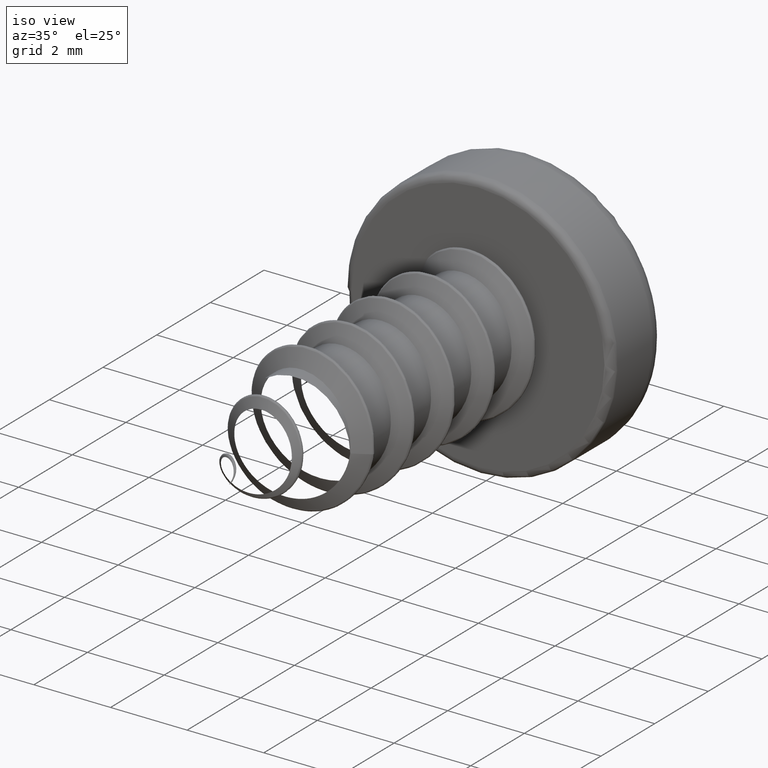
[diagram: clean part render]
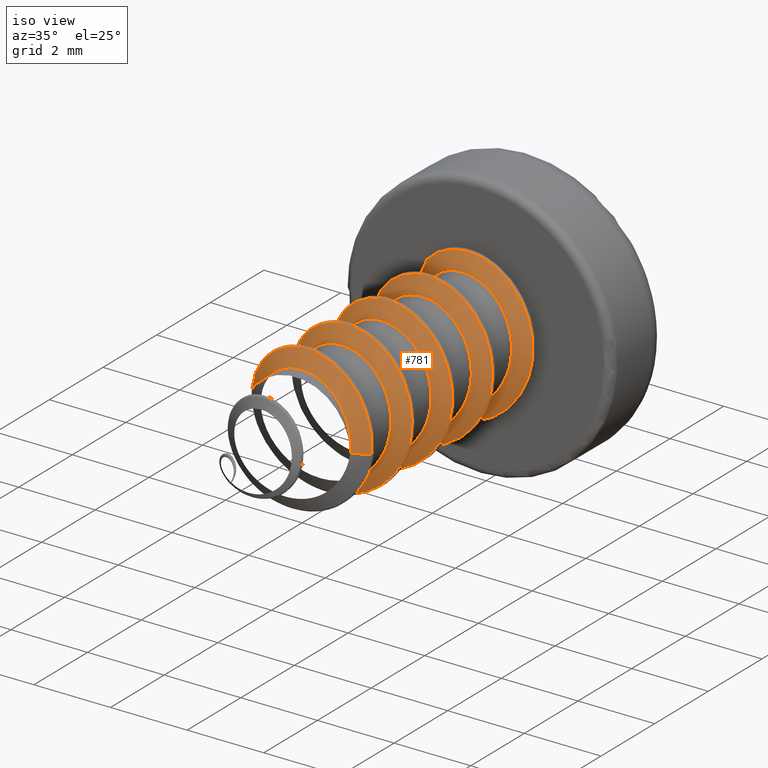
[diagram: same view with one face highlighted and labeled with its STEP entity id]
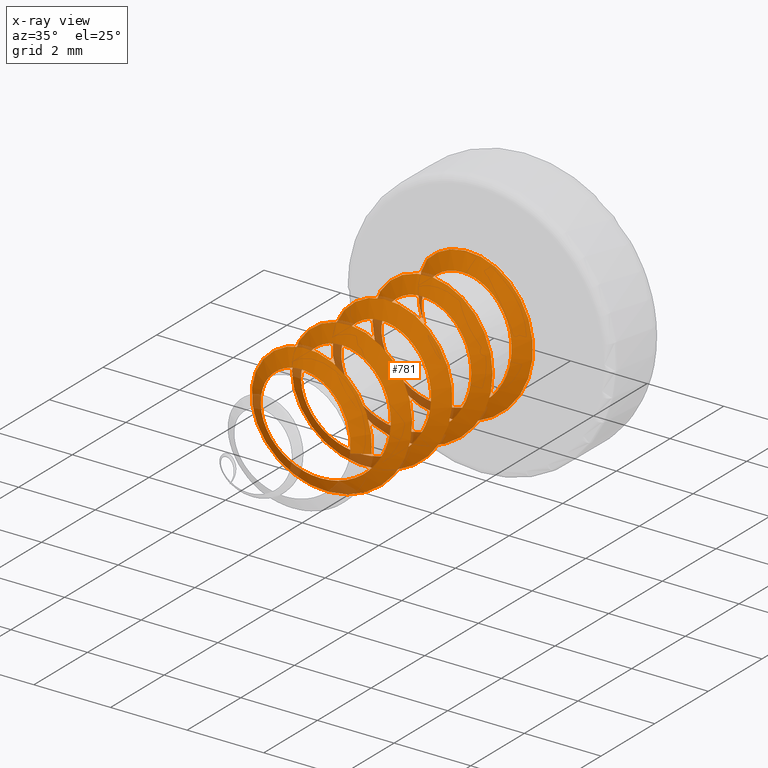
[diagram: x-ray of the same camera — body ghosted, the highlighted face saturated]
A machine part, iso view. The second image highlights one B-rep face of the part: STEP entity #781.
The next image is the same camera in x-ray: the body ghosted, the highlighted face saturated — about 8% of this face is hidden behind the body in this view.
In plain terms, the highlighted face is a freeform B-spline surface patch.
Its self-contained STEP definition (entity closure, byte-faithful):
#3 = CARTESIAN_POINT ( 'NONE',  ( -0.09987665471453638366, 1.008339647664638905, -1.437113781121196920 ) ) ;
#12 = CARTESIAN_POINT ( 'NONE',  ( 1.007627163190830233, -1.412500000000000311, 1.007627163190830233 ) ) ;
#27 = CARTESIAN_POINT ( 'NONE',  ( 0.7559397513308986349, -1.650309892324152150, -1.824999999999998623 ) ) ;
#28 = CARTESIAN_POINT ( 'NONE',  ( 0.3459861439554179352, 1.717507204482072503, 1.386393949257844538 ) ) ;
#29 = CARTESIAN_POINT ( 'NONE',  ( -1.825000000000001066, -0.5253098923241510398, -0.7559397513308984129 ) ) ;
#48 = CARTESIAN_POINT ( 'NONE',  ( -1.290469875665448685, 2.568440107675848072, -1.290469875665448463 ) ) ;
#49 = CARTESIAN_POINT ( 'NONE',  ( 1.174309526311028140, 3.045790213789427270, 0.8140625197956702364 ) ) ;
#59 = CARTESIAN_POINT ( 'NONE',  ( -0.6923341550841431991, -2.603523856270646419, 1.250005122212090480 ) ) ;
#63 = CARTESIAN_POINT ( 'NONE',  ( -0.7559397513308980798, -0.9003098923241520390, 1.824999999999998845 ) ) ;
#66 = CARTESIAN_POINT ( 'NONE',  ( 1.325400946962467019, 2.991363288109147422, 0.5339721996070398990 ) ) ;
#84 = CARTESIAN_POINT ( 'NONE',  ( -1.290469875665448685, -0.4315598923241519835, -1.290469875665448463 ) ) ;
#103 = CARTESIAN_POINT ( 'NONE',  ( -1.824999999999998845, -2.119059892324151484, 2.234980408443918722E-16 ) ) ;
#116 = CARTESIAN_POINT ( 'NONE',  ( 1.422419339735376154, -1.578174985472982739, 0.1363423541629372182 ) ) ;
#123 = CARTESIAN_POINT ( 'NONE',  ( -1.309063904724181437, 3.696701271350068652, 1.271875846606715266 ) ) ;
#138 = CARTESIAN_POINT ( 'NONE',  ( 1.290469875665449795, 0.3184401076758492932, 1.290469875665449795 ) ) ;
#150 = CARTESIAN_POINT ( 'NONE',  ( 0.7966179178529966265, -1.366304757443552065, 1.200373468168141500 ) ) ;
#175 = CARTESIAN_POINT ( 'NONE',  ( -1.344567546616423082, -2.267905563840935113, -0.4835541455109310660 ) ) ;
#180 = EDGE_CURVE ( 'NONE', #2212, #4928, #4597, .T. ) ;
#199 = CARTESIAN_POINT ( 'NONE',  ( -0.01145021896267220916, -1.222926698314638516, 1.428870911705670377 ) ) ;
#222 = CARTESIAN_POINT ( 'NONE',  ( 1.270392826307617851, -0.2140749331128754818, -0.6541806550332229797 ) ) ;
#228 = CARTESIAN_POINT ( 'NONE',  ( -0.7559397513308986349, 2.099690107675848960, 1.825000000000000844 ) ) ;
#239 = CARTESIAN_POINT ( 'NONE',  ( 1.315034235997164735, -0.1960186298450618536, -0.5589884137323660740 ) ) ;
#249 = CARTESIAN_POINT ( 'NONE',  ( -1.825000000000000622, 2.380940107675849404, 2.234980408443920694E-16 ) ) ;
#263 = CARTESIAN_POINT ( 'NONE',  ( -0.02562295694757490971, -0.4788250891305084744, -1.428717935387212590 ) ) ;
#291 = CARTESIAN_POINT ( 'NONE',  ( 1.117490204221960347E-16, 0.5059401076758489602, 1.825000000000000622 ) ) ;
#311 = B_SPLINE_CURVE_WITH_KNOTS ( 'NONE', 1,
 ( #4219, #5355 ),
 .UNSPECIFIED., .F., .F.,
 ( 2, 2 ),
 ( 0.000000000000000000, 1.000000000000000000 ),
 .UNSPECIFIED. ) ;
#411 = CARTESIAN_POINT ( 'NONE',  ( 1.007627163190830233, 1.587499999999999467, 1.007627163190830233 ) ) ;
#426 = CARTESIAN_POINT ( 'NONE',  ( 1.290469875665448463, -2.681559892324151484, 1.290469875665448463 ) ) ;
#427 = CARTESIAN_POINT ( 'NONE',  ( 0.7404430175993651497, 1.644932090007611869, 1.235555343368547554 ) ) ;
#433 = CARTESIAN_POINT ( 'NONE',  ( -1.007627163190830011, 1.962499999999999911, 1.007627163190830233 ) ) ;
#447 = CARTESIAN_POINT ( 'NONE',  ( -0.9472921333812492906, 2.353790902308045219, -1.085203848282680683 ) ) ;
#453 = CARTESIAN_POINT ( 'NONE',  ( -1.425000000000000044, 2.056249999999999911, 0.5902543263816606434 ) ) ;
#457 = CARTESIAN_POINT ( 'NONE',  ( 0.8888489549387126321, 1.186320475606509772, -1.118799972695244449 ) ) ;
#465 = CARTESIAN_POINT ( 'NONE',  ( 0.1376796028442892061, 1.752952464097291108, 1.422265418727651332 ) ) ;
#466 = CARTESIAN_POINT ( 'NONE',  ( 1.117490204221960347E-16, -2.494059892324151040, 1.825000000000000622 ) ) ;
#474 = CARTESIAN_POINT ( 'NONE',  ( 8.725608443924891385E-17, 3.275000000000000355, 1.425000000000000044 ) ) ;
#487 = CARTESIAN_POINT ( 'NONE',  ( -0.7559397513308997452, -1.837809892324150818, -1.825000000000000622 ) ) ;
#494 = CARTESIAN_POINT ( 'NONE',  ( 0.5902543263816606434, 0.1812499999999995504, 1.425000000000000044 ) ) ;
#498 = CARTESIAN_POINT ( 'NONE',  ( 0.1266801997864488716, -2.744452804200441243, 1.435150432561871581 ) ) ;
#506 = CARTESIAN_POINT ( 'NONE',  ( -3.352470612665877343E-16, 1.255940107675848072, -1.824999999999998845 ) ) ;
#507 = CARTESIAN_POINT ( 'NONE',  ( -1.428014480616729420, 2.141866009883426347, 0.04996333838694801827 ) ) ;
#520 = CARTESIAN_POINT ( 'NONE',  ( 1.824999999999998845, 3.130940107675848516, 0.000000000000000000 ) ) ;
#541 = CARTESIAN_POINT ( 'NONE',  ( 1.824999999999998845, 1.630940107675848516, 0.000000000000000000 ) ) ;
#563 = CARTESIAN_POINT ( 'NONE',  ( 1.290469875665448463, 3.318440107675848516, 1.290469875665448463 ) ) ;
#565 = CARTESIAN_POINT ( 'NONE',  ( 1.041978850163929993, 3.080493471072495382, 0.9777426683601172508 ) ) ;
#587 = CARTESIAN_POINT ( 'NONE',  ( -1.290469875665448685, 1.068440107675848294, -1.290469875665448463 ) ) ;
#588 = CARTESIAN_POINT ( 'NONE',  ( -0.1055934554151159444, 3.291775355385210933, 1.425060249694208414 ) ) ;
#600 = CARTESIAN_POINT ( 'NONE',  ( -1.216226022611091473, -2.213681026777018612, -0.7717935333644971863 ) ) ;
#609 = CARTESIAN_POINT ( 'NONE',  ( 1.435059086184683474, 2.919424448711136488, 0.1264638354089272221 ) ) ;
#637 = EDGE_CURVE ( 'NONE', #5445, #2212, #2455, .T. ) ;
#645 = CARTESIAN_POINT ( 'NONE',  ( -1.437160046621686282, -0.8335888320132174290, -0.09828861475873809650 ) ) ;
#646 = ORIENTED_EDGE ( 'NONE', *, *, #1663, .F. ) ;
#664 = CARTESIAN_POINT ( 'NONE',  ( 1.224778679930412784, -1.469923742781206411, 0.7360317319688218785 ) ) ;
#679 = CARTESIAN_POINT ( 'NONE',  ( 1.425000000000000044, -3.100000000000000533, 0.000000000000000000 ) ) ;
#688 = CARTESIAN_POINT ( 'NONE',  ( 1.276432496422353013, -1.488228126667585638, 0.6421821976474565430 ) ) ;
#716 = CARTESIAN_POINT ( 'NONE',  ( 1.083263062836580914, 0.07050440052589070083, 0.9319515000232673207 ) ) ;
#724 = CARTESIAN_POINT ( 'NONE',  ( 1.425000000000000044, -3.100000000000000533, 0.000000000000000000 ) ) ;
#726 = CARTESIAN_POINT ( 'NONE',  ( 1.117490204221960347E-16, 2.005940107675848960, 1.825000000000000622 ) ) ;
#739 = CARTESIAN_POINT ( 'NONE',  ( -1.137600250853696426, 0.4937586672838104040, 0.8646577670982275032 ) ) ;
#759 = CARTESIAN_POINT ( 'NONE',  ( 0.6864264475115349207, -0.3546760162037571606, -1.253255485451035822 ) ) ;
#781 = ADVANCED_FACE ( 'NONE', ( #4655 ), #4323, .T. ) ;
#785 = CARTESIAN_POINT ( 'NONE',  ( 1.825000000000000622, 1.537190107675849626, -0.7559397513308999672 ) ) ;
#798 = CARTESIAN_POINT ( 'NONE',  ( 0.7559397513308988570, 3.412190107675849404, 1.825000000000000844 ) ) ;
#877 = CARTESIAN_POINT ( 'NONE',  ( -0.5902543263816604213, 0.3687499999999997446, 1.425000000000000044 ) ) ;
#895 = CARTESIAN_POINT ( 'NONE',  ( 1.424999999999999822, -1.693750000000000311, -0.5902543263816615315 ) ) ;
#906 = CARTESIAN_POINT ( 'NONE',  ( 0.7559397513308981909, -2.587809892324151928, 1.824999999999998845 ) ) ;
#914 = CARTESIAN_POINT ( 'NONE',  ( -2.617682533177467046E-16, -0.4750000000000001443, -1.425000000000000044 ) ) ;
#928 = CARTESIAN_POINT ( 'NONE',  ( -0.7730624465119054767, 2.388429375200506577, -1.215464345978062077 ) ) ;
#934 = CARTESIAN_POINT ( 'NONE',  ( 1.424999999999999822, 2.806249999999999911, -0.5902543263816615315 ) ) ;
#941 = CARTESIAN_POINT ( 'NONE',  ( -0.3149503121235349146, 0.9736987736443121211, -1.405578674395822070 ) ) ;
#951 = CARTESIAN_POINT ( 'NONE',  ( -0.4845804968605427754, 2.442718897307616821, -1.344208046657995315 ) ) ;
#957 = CARTESIAN_POINT ( 'NONE',  ( -2.617682533177467046E-16, -1.975000000000000089, -1.425000000000000044 ) ) ;
#968 = CARTESIAN_POINT ( 'NONE',  ( 0.4517211426367370719, 2.601312637941103123, -1.355599212259509745 ) ) ;
#985 = CARTESIAN_POINT ( 'NONE',  ( -0.7559397513308980798, 2.099690107675847628, 1.824999999999998845 ) ) ;
#986 = CARTESIAN_POINT ( 'NONE',  ( -1.310756236041002332, 2.247875854946289831, -0.5689095830753775340 ) ) ;
#999 = CARTESIAN_POINT ( 'NONE',  ( -0.4001750634725572686, -2.657935924156614504, 1.371734112739506184 ) ) ;
#1005 = CARTESIAN_POINT ( 'NONE',  ( 1.290469875665448463, 0.3184401076758482940, 1.290469875665448463 ) ) ;
#1025 = CARTESIAN_POINT ( 'NONE',  ( -1.824999999999998845, 0.8809401076758479610, 2.234980408443918722E-16 ) ) ;
#1046 = CARTESIAN_POINT ( 'NONE',  ( 1.117490204221959361E-16, 3.505940107675848516, 1.824999999999998845 ) ) ;
#1047 = CARTESIAN_POINT ( 'NONE',  ( -1.324339535428027403, 3.558164633257344889, 0.5365047774162952088 ) ) ;
#1057 = CARTESIAN_POINT ( 'NONE',  ( 0.4363355111034195044, -2.798533320322205142, 1.360700639753371410 ) ) ;
#1064 = CARTESIAN_POINT ( 'NONE',  ( 1.824999999999998845, 1.724690107675847850, 0.7559397513308981909 ) ) ;
#1077 = CARTESIAN_POINT ( 'NONE',  ( -0.4308089520024380170, -1.153254178296192478, 1.374528324818148128 ) ) ;
#1084 = CARTESIAN_POINT ( 'NONE',  ( -1.531635791113957312, 3.699999999999999734, 0.7541177020555343002 ) ) ;
#1088 = CARTESIAN_POINT ( 'NONE',  ( 0.7993615835093629274, 3.132211123597497426, 1.184438654830298532 ) ) ;
#1101 = CARTESIAN_POINT ( 'NONE',  ( -1.221460072660616847, -2.481164390625421490, 0.7415080579728723364 ) ) ;
#1105 = CARTESIAN_POINT ( 'NONE',  ( -1.557575232782399954, 3.699999999999761258, 0.2138263420101132462 ) ) ;
#1119 = CARTESIAN_POINT ( 'NONE',  ( 0.6666882384633244785, -1.859367034929765516, -1.276906718105214056 ) ) ;
#1141 = CARTESIAN_POINT ( 'NONE',  ( -1.391958421355594666, -0.9034371914738859033, 0.3227567535461640658 ) ) ;
#1165 = CARTESIAN_POINT ( 'NONE',  ( -1.117941622229914111, -1.011545332455152657, 0.8899091236304672581 ) ) ;
#1172 = CARTESIAN_POINT ( 'NONE',  ( 1.007627163190830233, -2.912500000000000089, 1.007627163190830233 ) ) ;
#1184 = CARTESIAN_POINT ( 'NONE',  ( -0.2370069902688616004, -0.5136861850138934038, -1.409155478073137013 ) ) ;
#1191 = CARTESIAN_POINT ( 'NONE',  ( -0.7559397513308986349, 0.5996901076758490712, 1.825000000000000844 ) ) ;
#1201 = CARTESIAN_POINT ( 'NONE',  ( 1.383081309023763250, -0.1597751065211534816, -0.3589835388437592756 ) ) ;
#1208 = CARTESIAN_POINT ( 'NONE',  ( -0.7559397513308986349, 3.599690107675849404, 1.825000000000000844 ) ) ;
#1221 = CARTESIAN_POINT ( 'NONE',  ( 1.439219688535623654, -0.08954676505598106739, 0.05992406175999697576 ) ) ;
#1226 = CARTESIAN_POINT ( 'NONE',  ( 1.825000000000000622, 3.037190107675848516, -0.7559397513308999672 ) ) ;
#1342 = CARTESIAN_POINT ( 'NONE',  ( -1.425000000000000266, -2.256250000000000533, -0.5902543263816603103 ) ) ;
#1354 = CARTESIAN_POINT ( 'NONE',  ( -1.290469875665450017, -0.4315598923241509843, -1.290469875665449795 ) ) ;
#1363 = CARTESIAN_POINT ( 'NONE',  ( -2.617682533177467046E-16, 2.524999999999999467, -1.425000000000000044 ) ) ;
#1377 = CARTESIAN_POINT ( 'NONE',  ( 1.117490204221959361E-16, -2.494059892324151928, 1.824999999999998845 ) ) ;
#1379 = CARTESIAN_POINT ( 'NONE',  ( -1.362157579284734688, 2.071406575702112285, 0.4687976433618111227 ) ) ;
#1380 = CARTESIAN_POINT ( 'NONE',  ( -1.290469875665449795, -2.306559892324151040, 1.290469875665449795 ) ) ;
#1388 = CARTESIAN_POINT ( 'NONE',  ( -0.5902543263816613095, -2.068750000000000089, -1.424999999999999822 ) ) ;
#1400 = CARTESIAN_POINT ( 'NONE',  ( 0.1429004140499284259, 2.547905831525872244, -1.421823478474822267 ) ) ;
#1401 = CARTESIAN_POINT ( 'NONE',  ( -1.290469875665450017, -1.931559892324151040, -1.290469875665449795 ) ) ;
#1407 = CARTESIAN_POINT ( 'NONE',  ( -1.425000000000000044, -2.443750000000000533, 0.5902543263816606434 ) ) ;
#1415 = CARTESIAN_POINT ( 'NONE',  ( 0.6198621827492822867, 1.132497455230489170, -1.287518368892068388 ) ) ;
#1418 = B_SPLINE_CURVE_WITH_KNOTS ( 'NONE', 3,
 ( #2958, #1958, #5315, #3364, #3424, #5792, #5770, #1527, #3346, #2913, #1057, #498, #3844, #999, #4326, #59, #1474, #4819, #5294, #2512, #1101, #1545, #3503, #1628, #5892, #4897, #175, #600, #4978, #1584, #2111, #2988, #2972, #3441, #5852, #3527, #3957, #2028, #1119, #3940, #4958, #5372, #3483, #2584, #5450, #1604, #116, #5389, #2567, #688, #664, #3040, #4425, #150, #4916, #3920, #4445, #199, #2068, #1077, #4001, #3978, #4405, #1165, #5410, #2049, #2525, #1141, #5871, #645, #4933, #2543, #5431, #4463, #5972, #1648, #2649, #3114, #4069, #5995, #1184, #263, #5934, #3064, #3587, #3131, #759, #4531, #1668, #222, #239, #1201, #4021, #1221, #3546, #5046, #4506, #3564, #716, #5025, #2153, #5472, #5008, #1688, #5493, #4549, #2131, #2605, #5954, #2175, #3091, #2627, #739, #5515, #4047, #3057, #3551, #6045, #6089, #4221, #2373, #3326, #3786, #2846, #1881, #941, #3, #6179, #4263, #2821, #1415, #3302, #457, #4758, #5218, #2349, #5711, #5687, #5240, #4741, #3331, #5284, #4270, #5654, #5674, #3264, #427, #5205, #28, #465, #4231, #3792, #2334, #1444, #3811, #2877, #3744, #3768, #1379, #6161, #507, #5267, #3830, #2852, #986, #3284, #2829, #447, #928, #951, #2397, #4764, #4251, #1400, #1864, #968, #5225, #2357, #4786, #5696, #3311, #1425, #1910, #5840, #609, #5758, #66, #2902, #49, #565, #2460, #1088, #4333, #3865, #4411, #588, #3374, #2036, #3907, #1553, #5341, #5822, #1513, #1047, #5306, #3394, #4374, #4882 ),
 .UNSPECIFIED., .F., .F.,
 ( 4, 2, 2, 2, 2, 2, 2, 2, 2, 2, 2, 2, 2, 2, 2, 2, 2, 2, 2, 2, 2, 2, 2, 2, 2, 2, 2, 2, 2, 2, 2, 2, 2, 2, 2, 2, 2, 2, 2, 2, 2, 2, 2, 2, 2, 2, 2, 2, 2, 2, 2, 2, 2, 2, 2, 2, 2, 2, 2, 2, 2, 2, 2, 2, 2, 2, 2, 2, 2, 2, 2, 2, 2, 2, 2, 2, 2, 2, 2, 2, 2, 2, 2, 2, 2, 2, 2, 2, 2, 2, 2, 2, 2, 2, 2, 2, 2, 2, 2, 2, 2, 2, 2, 4 ),
 ( 0.000000000000000000, 0.0003200097240505572001, 0.0006400194481011144002, 0.001280038896202228800, 0.001600048620252786380, 0.001920058344303343526, 0.002560077792404458468, 0.002880087516455015831, 0.003200097240505573194, 0.003520106964556130990, 0.003840116688606687485, 0.004480136136707803078, 0.004800145860758360007, 0.005120155584808916936, 0.005760175032910031662, 0.006080184756960588591, 0.006400194481011146387, 0.006720204205061703316, 0.007040213929112261113, 0.007680233377213374103, 0.008000243101263931900, 0.008320252825314488829, 0.008960272273415604422, 0.009280281997466161351, 0.009600291721516718280, 0.009920301445567275209, 0.01024031116961783387, 0.01088033061771894947, 0.01120034034176950639, 0.01152035006582006332, 0.01216036951392117718, 0.01248037923797173585, 0.01280038896202229277, 0.01312039868607284970, 0.01344040841012340663, 0.01408042785822452223, 0.01440043758227507915, 0.01472044730632563608, 0.01504045703037619301, 0.01536046675442674821, 0.01568047647847730514, 0.01600048620252786380, 0.01632049592657841899, 0.01664050565062897766, 0.01728052509873009152, 0.01760053482278065018, 0.01792054454683120537, 0.01856056399493231923, 0.01888057371898287790, 0.01920058344303343656, 0.01952059316708399175, 0.01984060289113455042, 0.02048062233923566428, 0.02080063206328622294, 0.02112064178733677813, 0.02144065151138733680, 0.02176066123543789199, 0.02240068068353900932, 0.02272069040758956451, 0.02304070013164012318, 0.02368071957974123704, 0.02400072930379179570, 0.02432073902784235089, 0.02496075847594346475, 0.02528076819999402342, 0.02560077792404458208, 0.02592078764809513727, 0.02624079737214569594, 0.02688081682024680980, 0.02720082654429736499, 0.02752083626834792365, 0.02784084599239848232, 0.02816085571644903751, 0.02880087516455015137, 0.02912088488860071003, 0.02944089461265126870, 0.03008091406075238256, 0.03040092378480293775, 0.03072093350885349294, 0.03136095295695460333, 0.03168096268100516200, 0.03200097240505572066, 0.03232098212910627932, 0.03264099185315683799, 0.03328101130125794838, 0.03360102102530850704, 0.03392103074935906570, 0.03424104047340962437, 0.03456105019746017609, 0.03520106964556129342, 0.03552107936961185208, 0.03584108909366241075, 0.03648110854176352114, 0.03680111826581407980, 0.03712112798986463846, 0.03744113771391519713, 0.03776114743796574885, 0.03840116688606686618, 0.03872117661011742484, 0.03904118633416798351, 0.03968120578226909390, 0.04000121550631965256, 0.04032122523037021122, 0.04096124467847132855 ),
 .UNSPECIFIED. ) ;
#1425 = CARTESIAN_POINT ( 'NONE',  ( 1.338118137616291836, 2.814676993686885620, -0.5012099395159596016 ) ) ;
#1431 = CARTESIAN_POINT ( 'NONE',  ( -1.425000000000000044, 2.149999999999999911, 1.745121688784978277E-16 ) ) ;
#1443 = CARTESIAN_POINT ( 'NONE',  ( 0.7559397513308981909, 1.912190107675848072, 1.824999999999998845 ) ) ;
#1444 = CARTESIAN_POINT ( 'NONE',  ( -0.7725028752565945567, 1.912360547238205699, 1.202106600395943969 ) ) ;
#1463 = CARTESIAN_POINT ( 'NONE',  ( 1.824999999999998845, 0.2246901076758482108, 0.7559397513308981909 ) ) ;
#1474 = CARTESIAN_POINT ( 'NONE',  ( -0.7838183957097165644, -2.585355392945130948, 1.194706974125900878 ) ) ;
#1479 = CARTESIAN_POINT ( 'NONE',  ( 1.824999999999998401, -1.462809892324152150, -0.7559397513308993011 ) ) ;
#1481 = CARTESIAN_POINT ( 'NONE',  ( 0.7559397513308993011, -0.1503098923241507068, -1.825000000000000844 ) ) ;
#1493 = CARTESIAN_POINT ( 'NONE',  ( -1.824999999999999067, -0.5253098923241520390, -0.7559397513308976357 ) ) ;
#1511 = CARTESIAN_POINT ( 'NONE',  ( 1.824999999999998845, 0.1309401076758480997, 0.000000000000000000 ) ) ;
#1513 = CARTESIAN_POINT ( 'NONE',  ( -1.231098440189440923, 3.522038657400608841, 0.7253338623360670034 ) ) ;
#1527 = CARTESIAN_POINT ( 'NONE',  ( 0.8150390486711976967, -2.870989499272721623, 1.173637936220293332 ) ) ;
#1545 = CARTESIAN_POINT ( 'NONE',  ( -1.365518931172796213, -2.426815724097467264, 0.4589974784024736243 ) ) ;
#1553 = CARTESIAN_POINT ( 'NONE',  ( -0.8026367578894321175, 3.417541260548690119, 1.196109386215741255 ) ) ;
#1584 = CARTESIAN_POINT ( 'NONE',  ( -0.8455669846276423485, -2.127271058087803812, -1.151859199248368659 ) ) ;
#1604 = CARTESIAN_POINT ( 'NONE',  ( 1.428579054743302379, -1.594816500868761366, 0.03115305672361643602 ) ) ;
#1628 = CARTESIAN_POINT ( 'NONE',  ( -1.427282494585959016, -2.338876930227930639, -0.06908592037962268950 ) ) ;
#1635 = CARTESIAN_POINT ( 'NONE',  ( 8.725608443924891385E-17, -2.725000000000000533, 1.425000000000000044 ) ) ;
#1648 = CARTESIAN_POINT ( 'NONE',  ( -0.9041668753234146649, -0.6395597895624813845, -1.106543131704580407 ) ) ;
#1655 = CARTESIAN_POINT ( 'NONE',  ( 1.290469875665449795, 1.818440107675848960, 1.290469875665449795 ) ) ;
#1663 = EDGE_CURVE ( 'NONE', #2880, #4928, #1418, .T. ) ;
#1668 = CARTESIAN_POINT ( 'NONE',  ( 1.104326895323508806, -0.2680456917275260698, -0.9251962810557327055 ) ) ;
#1688 = CARTESIAN_POINT ( 'NONE',  ( 0.2774868242410553631, 0.2301696693656793968, 1.413491428820927487 ) ) ;
#1696 = CARTESIAN_POINT ( 'NONE',  ( -1.290469875665449795, 2.193440107675849404, 1.290469875665449795 ) ) ;
#1714 = CARTESIAN_POINT ( 'NONE',  ( 0.7559397513308988570, 0.4121901076758490157, 1.825000000000000844 ) ) ;
#1807 = CARTESIAN_POINT ( 'NONE',  ( -1.007627163190830455, -0.6625000000000003109, -1.007627163190830011 ) ) ;
#1830 = CARTESIAN_POINT ( 'NONE',  ( 8.725608443924891385E-17, 1.774999999999999689, 1.425000000000000044 ) ) ;
#1842 = CARTESIAN_POINT ( 'NONE',  ( 1.825000000000000622, -1.369059892324151040, 0.000000000000000000 ) ) ;
#1848 = CARTESIAN_POINT ( 'NONE',  ( 1.425000000000000044, -1.600000000000000311, 0.000000000000000000 ) ) ;
#1864 = CARTESIAN_POINT ( 'NONE',  ( 0.2476702688169705457, 2.565505003120068572, -1.407252874549479671 ) ) ;
#1872 = CARTESIAN_POINT ( 'NONE',  ( 1.425000000000000044, -0.006250000000000179023, 0.5902543263816605323 ) ) ;
#1881 = CARTESIAN_POINT ( 'NONE',  ( -0.6093804947662485594, 0.9194894685711353377, -1.292414577391557629 ) ) ;
#1894 = CARTESIAN_POINT ( 'NONE',  ( -0.5902543263816604213, 3.368750000000001243, 1.425000000000000044 ) ) ;
#1908 = CARTESIAN_POINT ( 'NONE',  ( 1.117490204221959361E-16, 2.005940107675848072, 1.824999999999998845 ) ) ;
#1910 = CARTESIAN_POINT ( 'NONE',  ( 1.371384938468898085, 2.832708851054427601, -0.4014600934844034796 ) ) ;
#1929 = CARTESIAN_POINT ( 'NONE',  ( -0.7559397513308990790, -0.3378098923241518725, -1.824999999999998401 ) ) ;
#1948 = CARTESIAN_POINT ( 'NONE',  ( -1.824999999999998845, -2.212809892324151928, 0.7559397513308984129 ) ) ;
#1958 = CARTESIAN_POINT ( 'NONE',  ( 1.425000000000000044, -3.083026735013615127, 0.1068644596377218009 ) ) ;
#1966 = CARTESIAN_POINT ( 'NONE',  ( -1.824999999999999067, 0.9746901076758479610, -0.7559397513308976357 ) ) ;
#1989 = CARTESIAN_POINT ( 'NONE',  ( 1.290469875665448241, -1.556559892324151928, -1.290469875665448685 ) ) ;
#2028 = CARTESIAN_POINT ( 'NONE',  ( 0.4672563395708980161, -1.896681567075587216, -1.362616411645790171 ) ) ;
#2032 = CARTESIAN_POINT ( 'NONE',  ( -1.568093042208328347, 3.699999999999993516, 0.3511145110888340692 ) ) ;
#2036 = CARTESIAN_POINT ( 'NONE',  ( -0.4160442779852034922, 3.344896744776076680, 1.366989217863234352 ) ) ;
#2049 = CARTESIAN_POINT ( 'NONE',  ( -1.287281630415405775, -0.9575952296090043392, 0.6203797144607406944 ) ) ;
#2068 = CARTESIAN_POINT ( 'NONE',  ( -0.1189845426003102447, -1.206030521705031555, 1.423918026374903611 ) ) ;
#2094 = CARTESIAN_POINT ( 'NONE',  ( -1.327114493337112622, 3.700000000259393573, 1.252753815230503331 ) ) ;
#2111 = CARTESIAN_POINT ( 'NONE',  ( -0.7564531625547447069, -2.109145919118023738, -1.212221513745739943 ) ) ;
#2117 = CARTESIAN_POINT ( 'NONE',  ( 0.5902543263816606434, -2.818750000000000089, 1.425000000000000044 ) ) ;
#2131 = CARTESIAN_POINT ( 'NONE',  ( -0.3581376194890358300, 0.3346275669736482050, 1.383281680166988048 ) ) ;
#2153 = CARTESIAN_POINT ( 'NONE',  ( 0.8501676612273065814, 0.1217741795277572231, 1.148453826847891213 ) ) ;
#2161 = CARTESIAN_POINT ( 'NONE',  ( -1.825000000000000844, 3.787190107675848516, 0.7559397513308989680 ) ) ;
#2175 = CARTESIAN_POINT ( 'NONE',  ( -0.8345020507967721990, 0.4249796053698646214, 1.159976167239787470 ) ) ;
#2184 = CARTESIAN_POINT ( 'NONE',  ( -1.676469436076738706, 3.998995691579396716, -0.8904009858816419598 ) ) ;
#2203 = CARTESIAN_POINT ( 'NONE',  ( 1.825000000000000844, 3.224690107675848960, 0.7559397513308987460 ) ) ;
#2212 = VERTEX_POINT ( 'NONE', #5099 ) ;
#2273 = CARTESIAN_POINT ( 'NONE',  ( -1.393837258077200048, 3.699124595260662396, -0.2963826884212912294 ) ) ;
#2298 = CARTESIAN_POINT ( 'NONE',  ( -2.617682533177467046E-16, 1.024999999999999911, -1.425000000000000044 ) ) ;
#2311 = CARTESIAN_POINT ( 'NONE',  ( 1.824999999999998845, -2.775309892324151928, 0.7559397513308981909 ) ) ;
#2319 = CARTESIAN_POINT ( 'NONE',  ( -1.007627163190830455, 0.8374999999999996891, -1.007627163190830011 ) ) ;
#2334 = CARTESIAN_POINT ( 'NONE',  ( -0.4934822457070696666, 1.858085551261065227, 1.353471151208146095 ) ) ;
#2341 = CARTESIAN_POINT ( 'NONE',  ( -1.425000000000000044, -2.350000000000000533, 1.745121688784978277E-16 ) ) ;
#2349 = CARTESIAN_POINT ( 'NONE',  ( 1.293552595660258708, 1.290685020640009562, -0.6338048571096703832 ) ) ;
#2357 = CARTESIAN_POINT ( 'NONE',  ( 0.8342957222756374192, 2.674002739855035227, -1.174326401951149013 ) ) ;
#2364 = CARTESIAN_POINT ( 'NONE',  ( 1.425000000000000044, -1.506250000000000311, 0.5902543263816605323 ) ) ;
#2373 = CARTESIAN_POINT ( 'NONE',  ( -1.179823209010164575, 0.7974530152229660773, -0.8268154365089149804 ) ) ;
#2386 = CARTESIAN_POINT ( 'NONE',  ( -1.007627163190830011, 3.462499999999999467, 1.007627163190830233 ) ) ;
#2396 = CARTESIAN_POINT ( 'NONE',  ( 0.7559397513308986349, 2.849690107675848072, -1.824999999999998623 ) ) ;
#2397 = CARTESIAN_POINT ( 'NONE',  ( -0.3820467999729195707, 2.461153023884612434, -1.376868529001978203 ) ) ;
#2417 = CARTESIAN_POINT ( 'NONE',  ( -0.7559397513308980798, 0.5996901076758480720, 1.824999999999998845 ) ) ;
#2420 = CARTESIAN_POINT ( 'NONE',  ( -3.352470612665880301E-16, -0.2440598923241507900, -1.825000000000000622 ) ) ;
#2439 = CARTESIAN_POINT ( 'NONE',  ( -1.824999999999998845, 2.287190107675848516, 0.7559397513308984129 ) ) ;
#2455 =( BOUNDED_CURVE ( )  B_SPLINE_CURVE ( 2, ( #4295, #2311, #426, #906, #1377, #5204, #3864, #1948, #103, #5757, #3427, #4860, #5283, #27, #1989, #1479, #2943, #2479, #5740, #4824, #5775, #63, #2876, #2459, #3392, #1493, #84, #1929, #3351, #5339, #4351, #5303, #1511, #1463, #1005, #3828, #4332, #2417, #4809, #5821, #1025, #1966, #587, #4840, #506, #5323, #5265, #3905, #541, #1064, #2900, #1443, #1908, #985, #2964, #2439, #4312, #2919, #48, #3411, #5799, #2396, #3373, #4784, #520, #3849, #563, #3887, #1046, #4373, #3512, #123, #2094 ),
 .UNSPECIFIED., .F., .T. ) 
 B_SPLINE_CURVE_WITH_KNOTS ( ( 3, 2, 2, 2, 2, 2, 2, 2, 2, 2, 2, 2, 2, 2, 2, 2, 2, 2, 2, 2, 2, 2, 2, 2, 2, 2, 2, 2, 2, 2, 2, 2, 2, 2, 2, 2, 3 ),
 ( 0.000000000000000000, 0.02757166055678410971, 0.05514332111356821942, 0.08271498167035232219, 0.1102866422271364388, 0.1378583027839205277, 0.1654299633407046444, 0.1930016238974887333, 0.2205732844542728777, 0.2481449450110569666, 0.2757166055678410554, 0.3032882661246252276, 0.3308599266814092887, 0.3584315872381934054, 0.3860032477949774665, 0.4135749083517615832, 0.4411465689085457553, 0.4687182294653298165, 0.4962898900221139331, 0.5238615505788979387, 0.5514332111356821109, 0.5790048716924662831, 0.6065765322492504552, 0.6341481928060344053, 0.6617198533628185775, 0.6892915139196026386, 0.7168631744763868108, 0.7444348350331708719, 0.7720064955899549330, 0.7995781561467391052, 0.8271498167035231663, 0.8547214772603073385, 0.8822931378170915107, 0.9098647983738755718, 0.9374364589306596329, 0.9650081194874438051, 0.9660432758528956221 ),
 .UNSPECIFIED. ) 
 CURVE ( )  GEOMETRIC_REPRESENTATION_ITEM ( )  RATIONAL_B_SPLINE_CURVE ( ( 1.000000000000000000, 0.9238795325112867385, 1.000000000000000000, 0.9238795325112867385, 1.000000000000000000, 0.9238795325112867385, 1.000000000000000000, 0.9238795325112867385, 1.000000000000000000, 0.9238795325112867385, 1.000000000000000000, 0.9238795325112867385, 1.000000000000000000, 0.9238795325112867385, 1.000000000000000000, 0.9238795325112867385, 1.000000000000000000, 0.9238795325112867385, 1.000000000000000000, 0.9238795325112867385, 1.000000000000000000, 0.9238795325112867385, 1.000000000000000000, 0.9238795325112867385, 1.000000000000000000, 0.9238795325112867385, 1.000000000000000000, 0.9238795325112867385, 1.000000000000000000, 0.9238795325112867385, 1.000000000000000000, 0.9238795325112867385, 1.000000000000000000, 0.9238795325112867385, 1.000000000000000000, 0.9238795325112867385, 1.000000000000000000, 0.9238795325112867385, 1.000000000000000000, 0.9238795325112867385, 1.000000000000000000, 0.9238795325112867385, 1.000000000000000000, 0.9238795325112867385, 1.000000000000000000, 0.9238795325112867385, 1.000000000000000000, 0.9238795325112867385, 1.000000000000000000, 0.9238795325112867385, 1.000000000000000000, 0.9238795325112867385, 1.000000000000000000, 0.9238795325112867385, 1.000000000000000000, 0.9238795325112867385, 1.000000000000000000, 0.9238795325112867385, 1.000000000000000000, 0.9238795325112867385, 1.000000000000000000, 0.9238795325112867385, 1.000000000000000000, 0.9238795325112867385, 1.000000000000000000, 0.9238795325112867385, 1.000000000000000000, 0.9238795325112867385, 1.000000000000000000, 0.9238795325112867385, 1.000000000000000000, 0.9971421167651534079, 0.9944988274983542764 ) ) 
 REPRESENTATION_ITEM ( '' )  );
#2459 = CARTESIAN_POINT ( 'NONE',  ( -1.824999999999998845, -0.7128098923241518170, 0.7559397513308984129 ) ) ;
#2460 = CARTESIAN_POINT ( 'NONE',  ( 0.9658948535297781079, 3.097116889796519335, 1.053053180125055110 ) ) ;
#2479 = CARTESIAN_POINT ( 'NONE',  ( 1.824999999999998845, -1.275309892324151928, 0.7559397513308981909 ) ) ;
#2512 = CARTESIAN_POINT ( 'NONE',  ( -1.163623456698173131, -2.498922256961408017, 0.8293556931821064460 ) ) ;
#2525 = CARTESIAN_POINT ( 'NONE',  ( -1.329374009374433729, -0.9395042135467516209, 0.5239130767046799031 ) ) ;
#2543 = CARTESIAN_POINT ( 'NONE',  ( -1.292908831030191052, -0.7446862159828996353, -0.6083464905426391178 ) ) ;
#2567 = CARTESIAN_POINT ( 'NONE',  ( 1.356856260677240744, -1.524376163670924988, 0.4479051024037261630 ) ) ;
#2584 = CARTESIAN_POINT ( 'NONE',  ( 1.353514578777666788, -1.683116450036934442, -0.4936947741141383683 ) ) ;
#2592 = CARTESIAN_POINT ( 'NONE',  ( -1.007627163190830011, -2.537500000000000089, 1.007627163190830233 ) ) ;
#2602 = ORIENTED_EDGE ( 'NONE', *, *, #180, .T. ) ;
#2605 = CARTESIAN_POINT ( 'NONE',  ( -0.5577259495277084866, 0.3707841629147555218, 1.315550275132917557 ) ) ;
#2612 = CARTESIAN_POINT ( 'NONE',  ( -0.7559397513308997452, 2.662190107675848516, -1.825000000000000622 ) ) ;
#2627 = CARTESIAN_POINT ( 'NONE',  ( -1.069281294905565893, 0.4762270252943551774, 0.9478226196786818658 ) ) ;
#2649 = CARTESIAN_POINT ( 'NONE',  ( -0.8193849276660467584, -0.6218797589097004863, -1.170597869748025044 ) ) ;
#2658 = CARTESIAN_POINT ( 'NONE',  ( -1.785089821747993799, 3.930064702936511001, -0.3795778290307765257 ) ) ;
#2695 = CARTESIAN_POINT ( 'NONE',  ( -1.290469875665450017, 1.068440107675848960, -1.290469875665449795 ) ) ;
#2746 = CARTESIAN_POINT ( 'NONE',  ( 1.825000000000000622, -2.869059892324151040, 0.000000000000000000 ) ) ;
#2772 = CARTESIAN_POINT ( 'NONE',  ( 8.725608443924891385E-17, -1.225000000000000311, 1.425000000000000044 ) ) ;
#2787 = CARTESIAN_POINT ( 'NONE',  ( -1.825000000000000844, -2.212809892324151040, 0.7559397513308989680 ) ) ;
#2796 = CARTESIAN_POINT ( 'NONE',  ( 0.5902543263816606434, -1.318750000000000311, 1.425000000000000044 ) ) ;
#2810 = CARTESIAN_POINT ( 'NONE',  ( -1.425000000000000044, 0.6499999999999995781, 1.745121688784978277E-16 ) ) ;
#2821 = CARTESIAN_POINT ( 'NONE',  ( 0.5226567025425237212, 1.114272855082645064, -1.329857502487160614 ) ) ;
#2829 = CARTESIAN_POINT ( 'NONE',  ( -1.152448127600952388, 2.302101323982998604, -0.8447422729817923859 ) ) ;
#2830 = CARTESIAN_POINT ( 'NONE',  ( -1.825000000000000622, -0.6190598923241507068, 2.234980408443920694E-16 ) ) ;
#2835 = CARTESIAN_POINT ( 'NONE',  ( 1.007627163190830233, 3.087499999999999911, 1.007627163190830233 ) ) ;
#2846 = CARTESIAN_POINT ( 'NONE',  ( -0.7046346958679934325, 0.9011157438136978559, -1.243097945251364411 ) ) ;
#2852 = CARTESIAN_POINT ( 'NONE',  ( -1.349116719995781422, 2.229794732615783648, -0.4709594351868602313 ) ) ;
#2853 = CARTESIAN_POINT ( 'NONE',  ( -0.7559397513308986349, -0.9003098923241509288, 1.825000000000000844 ) ) ;
#2863 = CARTESIAN_POINT ( 'NONE',  ( 0.5902543263816610875, -1.881250000000000089, -1.424999999999999822 ) ) ;
#2876 = CARTESIAN_POINT ( 'NONE',  ( -1.290469875665448463, -0.8065598923241518170, 1.290469875665448463 ) ) ;
#2877 = CARTESIAN_POINT ( 'NONE',  ( -1.018171639328879996, 1.964507068031737358, 1.002576346409022490 ) ) ;
#2879 = CARTESIAN_POINT ( 'NONE',  ( -1.290469875665449795, -0.8065598923241508178, 1.290469875665449795 ) ) ;
#2880 = VERTEX_POINT ( 'NONE', #679 ) ;
#2900 = CARTESIAN_POINT ( 'NONE',  ( 1.290469875665448463, 1.818440107675848072, 1.290469875665448463 ) ) ;
#2902 = CARTESIAN_POINT ( 'NONE',  ( 1.232035492467512539, 3.027657836188502483, 0.7238111117291029517 ) ) ;
#2913 = CARTESIAN_POINT ( 'NONE',  ( 0.5352163533097911152, -2.816595436560764831, 1.324875943240740650 ) ) ;
#2919 = CARTESIAN_POINT ( 'NONE',  ( -1.824999999999999067, 2.474690107675848516, -0.7559397513308976357 ) ) ;
#2943 = CARTESIAN_POINT ( 'NONE',  ( 1.824999999999998845, -1.369059892324151928, 0.000000000000000000 ) ) ;
#2958 = CARTESIAN_POINT ( 'NONE',  ( 1.425000000000000044, -3.100000000000000533, 0.000000000000000000 ) ) ;
#2964 = CARTESIAN_POINT ( 'NONE',  ( -1.290469875665448463, 2.193440107675848516, 1.290469875665448463 ) ) ;
#2972 = CARTESIAN_POINT ( 'NONE',  ( -0.4719325181837943362, -2.054970149494085074, -1.348799613614106940 ) ) ;
#2988 = CARTESIAN_POINT ( 'NONE',  ( -0.5701492523652184063, -2.073109140636604675, -1.310203119960593021 ) ) ;
#3040 = CARTESIAN_POINT ( 'NONE',  ( 1.102613381926072611, -1.434432530145229867, 0.9088835212911805517 ) ) ;
#3057 = CARTESIAN_POINT ( 'NONE',  ( -1.426493840740907126, 0.6369872031965926329, 0.08254793828462975158 ) ) ;
#3064 = CARTESIAN_POINT ( 'NONE',  ( 0.2899493076173124684, -0.4272469006504983069, -1.399152440737974512 ) ) ;
#3076 = CARTESIAN_POINT ( 'NONE',  ( 0.7559397513308993011, 1.349690107675849404, -1.825000000000000844 ) ) ;
#3091 = CARTESIAN_POINT ( 'NONE',  ( -0.9182256162165762792, 0.4425651648400124594, 1.094802230420258038 ) ) ;
#3099 = CARTESIAN_POINT ( 'NONE',  ( -1.825000000000000844, 0.7871901076758491822, 0.7559397513308989680 ) ) ;
#3114 = CARTESIAN_POINT ( 'NONE',  ( -0.6386096049279261777, -0.5860862626888321270, -1.278228776408473877 ) ) ;
#3131 = CARTESIAN_POINT ( 'NONE',  ( 0.5924151838400069092, -0.3727044906646680977, -1.300325029485247530 ) ) ;
#3141 = CARTESIAN_POINT ( 'NONE',  ( 0.7559397513308988570, 1.912190107675848960, 1.825000000000000844 ) ) ;
#3189 = CARTESIAN_POINT ( 'NONE',  ( -1.309024080224301390, 3.768055583903549000, -0.6952446054144328924 ) ) ;
#3253 = CARTESIAN_POINT ( 'NONE',  ( 1.425000000000000044, 1.400000000000000133, 0.000000000000000000 ) ) ;
#3264 = CARTESIAN_POINT ( 'NONE',  ( 0.9179748163996951371, 1.609692200791692285, 1.110215065563124215 ) ) ;
#3269 = CARTESIAN_POINT ( 'NONE',  ( 0.5902543263816606434, 1.681249999999999911, 1.425000000000000044 ) ) ;
#3284 = CARTESIAN_POINT ( 'NONE',  ( -1.212762358569236198, 2.283976524375272987, -0.7556106706981835508 ) ) ;
#3285 = CARTESIAN_POINT ( 'NONE',  ( 1.825000000000000622, -1.462809892324151040, -0.7559397513308999672 ) ) ;
#3294 = CARTESIAN_POINT ( 'NONE',  ( 1.007627163190830011, 2.712499999999999467, -1.007627163190830455 ) ) ;
#3302 = CARTESIAN_POINT ( 'NONE',  ( 0.8040893808469602444, 1.168748976217076407, -1.181259050101352681 ) ) ;
#3311 = CARTESIAN_POINT ( 'NONE',  ( 1.249644751130876585, 2.778404642720428974, -0.6929354585084642748 ) ) ;
#3312 = CARTESIAN_POINT ( 'NONE',  ( -1.825000000000001066, -2.025309892324151040, -0.7559397513308984129 ) ) ;
#3320 = CARTESIAN_POINT ( 'NONE',  ( 0.5902543263816606434, 3.181250000000000799, 1.425000000000000044 ) ) ;
#3326 = CARTESIAN_POINT ( 'NONE',  ( -0.9608831449657632140, 0.8485166630825862200, -1.057626576047908440 ) ) ;
#3331 = CARTESIAN_POINT ( 'NONE',  ( 1.396722201730709045, 1.449803587912686709, 0.3018526402805994935 ) ) ;
#3339 = CARTESIAN_POINT ( 'NONE',  ( 1.425000000000000044, -0.1000000000000002554, 0.000000000000000000 ) ) ;
#3346 = CARTESIAN_POINT ( 'NONE',  ( 0.7244664089086452208, -2.852788893863840158, 1.231625443140602405 ) ) ;
#3351 = CARTESIAN_POINT ( 'NONE',  ( -3.352470612665877343E-16, -0.2440598923241517892, -1.824999999999998845 ) ) ;
#3358 = CARTESIAN_POINT ( 'NONE',  ( -1.393832125675653621, 3.699579264778770415, -0.2964068238700390823 ) ) ;
#3364 = CARTESIAN_POINT ( 'NONE',  ( 1.366672697918315693, -3.029924610842897437, 0.4170379243982941242 ) ) ;
#3373 = CARTESIAN_POINT ( 'NONE',  ( 1.290469875665448241, 2.943440107675848072, -1.290469875665448685 ) ) ;
#3374 = CARTESIAN_POINT ( 'NONE',  ( -0.2102283657104263570, 3.309157027461294032, 1.413349354281979942 ) ) ;
#3392 = CARTESIAN_POINT ( 'NONE',  ( -1.824999999999998845, -0.6190598923241517060, 2.234980408443918722E-16 ) ) ;
#3394 = CARTESIAN_POINT ( 'NONE',  ( -1.435275291392360320, 3.630550969780028225, 0.1267081568522249735 ) ) ;
#3411 = CARTESIAN_POINT ( 'NONE',  ( -0.7559397513308990790, 2.662190107675847628, -1.824999999999998401 ) ) ;
#3424 = CARTESIAN_POINT ( 'NONE',  ( 1.331422314600674062, -3.011460032026891387, 0.5186905778795463107 ) ) ;
#3427 = CARTESIAN_POINT ( 'NONE',  ( -1.290469875665448685, -1.931559892324151928, -1.290469875665448463 ) ) ;
#3441 = CARTESIAN_POINT ( 'NONE',  ( -0.2660758691659054764, -2.018643108555910004, -1.403988721910710336 ) ) ;
#3468 = CARTESIAN_POINT ( 'NONE',  ( -1.393832125675653621, 3.699579264778770415, -0.2964068238700390823 ) ) ;
#3483 = CARTESIAN_POINT ( 'NONE',  ( 1.201413491573861458, -1.737585686615935154, -0.7736332680942111795 ) ) ;
#3503 = CARTESIAN_POINT ( 'NONE',  ( -1.418985881007884364, -2.390019430822436064, 0.2494730536253284559 ) ) ;
#3512 = CARTESIAN_POINT ( 'NONE',  ( -1.290469875665448463, 3.693440107675848072, 1.290469875665448463 ) ) ;
#3527 = CARTESIAN_POINT ( 'NONE',  ( 0.04885702841789377193, -1.967038614094526405, -1.428061765139464701 ) ) ;
#3546 = CARTESIAN_POINT ( 'NONE',  ( 1.413850936330284247, -0.05543750667006532712, 0.2759494210986207507 ) ) ;
#3551 = CARTESIAN_POINT ( 'NONE',  ( -1.428703848747354233, 0.6537221808885074203, -0.02496920702964612257 ) ) ;
#3553 = CARTESIAN_POINT ( 'NONE',  ( -1.825000000000000844, 2.287190107675849404, 0.7559397513308989680 ) ) ;
#3562 = CARTESIAN_POINT ( 'NONE',  ( -1.425000000000000044, 3.673797415405576583, -0.1498296255983334879 ) ) ;
#3564 = CARTESIAN_POINT ( 'NONE',  ( 1.149264062615003246, 0.05299548108276169733, 0.8490530444448748382 ) ) ;
#3572 = CARTESIAN_POINT ( 'NONE',  ( 1.825000000000000622, 3.130940107675848960, 0.000000000000000000 ) ) ;
#3587 = CARTESIAN_POINT ( 'NONE',  ( 0.3940518996202587165, -0.4090251637689205078, -1.373507929629699476 ) ) ;
#3595 = CARTESIAN_POINT ( 'NONE',  ( -1.825000000000001066, 0.9746901076758490712, -0.7559397513308984129 ) ) ;
#3636 = CARTESIAN_POINT ( 'NONE',  ( -3.352470612665880301E-16, 2.755940107675848960, -1.825000000000000622 ) ) ;
#3728 = CARTESIAN_POINT ( 'NONE',  ( -1.425000000000000266, 2.243749999999999911, -0.5902543263816603103 ) ) ;
#3744 = CARTESIAN_POINT ( 'NONE',  ( -1.090590057387250456, 1.981366803875034721, 0.9232052512768923469 ) ) ;
#3745 = CARTESIAN_POINT ( 'NONE',  ( -3.352470612665880301E-16, -1.744059892324150818, -1.825000000000000622 ) ) ;
#3751 = CARTESIAN_POINT ( 'NONE',  ( 0.5902543263816610875, 2.618749999999999911, -1.424999999999999822 ) ) ;
#3768 = CARTESIAN_POINT ( 'NONE',  ( -1.276231960009301059, 2.034124827244614853, 0.6679336952717982445 ) ) ;
#3777 = CARTESIAN_POINT ( 'NONE',  ( -1.007627163190830011, 0.4624999999999998002, 1.007627163190830233 ) ) ;
#3786 = CARTESIAN_POINT ( 'NONE',  ( -0.8803665483349188969, 0.8654677808956083851, -1.125503130462996548 ) ) ;
#3792 = CARTESIAN_POINT ( 'NONE',  ( -0.2853058152622386379, 1.821158877828861433, 1.412174225631315450 ) ) ;
#3799 = CARTESIAN_POINT ( 'NONE',  ( -1.007627163190830455, 2.337500000000000355, -1.007627163190830011 ) ) ;
#3811 = CARTESIAN_POINT ( 'NONE',  ( -0.8588436118848934431, 1.930026787685296341, 1.142024722953506100 ) ) ;
#3828 = CARTESIAN_POINT ( 'NONE',  ( 0.7559397513308981909, 0.4121901076758479610, 1.824999999999998845 ) ) ;
#3830 = CARTESIAN_POINT ( 'NONE',  ( -1.404049711831193425, 2.193569421843466927, -0.2656371970760950663 ) ) ;
#3844 = CARTESIAN_POINT ( 'NONE',  ( -0.09007038398306915772, -2.711534449577085226, 1.437772776151770016 ) ) ;
#3849 = CARTESIAN_POINT ( 'NONE',  ( 1.824999999999998845, 3.224690107675848516, 0.7559397513308981909 ) ) ;
#3864 = CARTESIAN_POINT ( 'NONE',  ( -1.290469875665448463, -2.306559892324151928, 1.290469875665448463 ) ) ;
#3865 = CARTESIAN_POINT ( 'NONE',  ( 0.4242729767653397044, 3.204433141804503116, 1.376669330083735820 ) ) ;
#3887 = CARTESIAN_POINT ( 'NONE',  ( 0.7559397513308981909, 3.412190107675848516, 1.824999999999998845 ) ) ;
#3905 = CARTESIAN_POINT ( 'NONE',  ( 1.824999999999998401, 1.537190107675848516, -0.7559397513308993011 ) ) ;
#3907 = CARTESIAN_POINT ( 'NONE',  ( -0.5176606496694403647, 3.363350775707499185, 1.331811570384855870 ) ) ;
#3920 = CARTESIAN_POINT ( 'NONE',  ( 0.3031059307476723919, -1.275022651446582556, 1.396418146858696696 ) ) ;
#3940 = CARTESIAN_POINT ( 'NONE',  ( 0.9222984494993190507, -1.806561746315675121, -1.091363969335181761 ) ) ;
#3957 = CARTESIAN_POINT ( 'NONE',  ( 0.1563986319789960611, -1.949850462686311792, -1.420306731292226621 ) ) ;
#3978 = CARTESIAN_POINT ( 'NONE',  ( -0.8933695564734288608, -1.062723931046136938, 1.115188651350669025 ) ) ;
#3988 = CARTESIAN_POINT ( 'NONE',  ( 1.825000000000000622, 0.03719010767584901567, -0.7559397513308999672 ) ) ;
#4001 = CARTESIAN_POINT ( 'NONE',  ( -0.6324247837976400000, -1.115952651073721880, 1.294288786545695569 ) ) ;
#4021 = CARTESIAN_POINT ( 'NONE',  ( 1.406104375318035338, -0.1416044447090609171, -0.2541166798403350913 ) ) ;
#4030 = CARTESIAN_POINT ( 'NONE',  ( -1.825000000000001066, 2.474690107675849404, -0.7559397513308984129 ) ) ;
#4047 = CARTESIAN_POINT ( 'NONE',  ( -1.385094013036097582, 0.5845544560842594883, 0.3955185636587783549 ) ) ;
#4057 = CARTESIAN_POINT ( 'NONE',  ( 1.117490204221960347E-16, 3.505940107675849404, 1.825000000000000622 ) ) ;
#4069 = CARTESIAN_POINT ( 'NONE',  ( -0.5407909002279569499, -0.5676295651791030128, -1.322615335015927096 ) ) ;
#4076 = CARTESIAN_POINT ( 'NONE',  ( 0.7559397513308993011, 2.849690107675848960, -1.825000000000000844 ) ) ;
#4093 = CARTESIAN_POINT ( 'NONE',  ( 1.290469875665449795, 3.318440107675849404, 1.290469875665449795 ) ) ;
#4094 = EDGE_LOOP ( 'NONE', ( #4291, #2602, #646, #4934 ) ) ;
#4114 = CARTESIAN_POINT ( 'NONE',  ( -1.825000000000000622, 3.880940107675848960, 2.234980408443920694E-16 ) ) ;
#4188 = CARTESIAN_POINT ( 'NONE',  ( -1.425000000000000044, -0.9437500000000003109, 0.5902543263816606434 ) ) ;
#4215 = CARTESIAN_POINT ( 'NONE',  ( -0.5902543263816613095, 2.431249999999999911, -1.424999999999999822 ) ) ;
#4219 = CARTESIAN_POINT ( 'NONE',  ( 1.425000000000000044, -3.100000000000000533, 0.000000000000000000 ) ) ;
#4221 = CARTESIAN_POINT ( 'NONE',  ( -1.290270619643874017, 0.7606457089416716055, -0.6408237529891752660 ) ) ;
#4231 = CARTESIAN_POINT ( 'NONE',  ( 0.03250638580854675608, 1.769601947137823039, 1.428573046022370008 ) ) ;
#4235 = CARTESIAN_POINT ( 'NONE',  ( -0.5902543263816613095, 0.9312499999999996891, -1.424999999999999822 ) ) ;
#4251 = CARTESIAN_POINT ( 'NONE',  ( -0.07036150678713246065, 2.513676254158525580, -1.427253232835900443 ) ) ;
#4256 = CARTESIAN_POINT ( 'NONE',  ( 0.5902543263816610875, 1.118749999999999911, -1.424999999999999822 ) ) ;
#4263 = CARTESIAN_POINT ( 'NONE',  ( 0.3217121492073125033, 1.078256058175662835, -1.392189749526415277 ) ) ;
#4270 = CARTESIAN_POINT ( 'NONE',  ( 1.295202752258854284, 1.504384383429183014, 0.6034451148349989635 ) ) ;
#4271 = CARTESIAN_POINT ( 'NONE',  ( 0.7559397513308988570, -1.087809892324151262, 1.825000000000000844 ) ) ;
#4278 = CARTESIAN_POINT ( 'NONE',  ( -0.5902543263816604213, -1.131250000000000311, 1.425000000000000044 ) ) ;
#4291 = ORIENTED_EDGE ( 'NONE', *, *, #637, .T. ) ;
#4295 = CARTESIAN_POINT ( 'NONE',  ( 1.825000000000000622, -2.869059892324151040, 0.000000000000000000 ) ) ;
#4301 = CARTESIAN_POINT ( 'NONE',  ( -1.425000000000000044, 3.556249999999999467, 0.5902543263816606434 ) ) ;
#4312 = CARTESIAN_POINT ( 'NONE',  ( -1.824999999999998845, 2.380940107675848072, 2.234980408443918722E-16 ) ) ;
#4323 =( BOUNDED_SURFACE ( )  B_SPLINE_SURFACE ( 1, 2, ( 
 ( #724, #5011, #1172, #2117, #1635, #4989, #2592, #1407, #2341, #1342, #5662, #1388, #957, #2863, #4725, #895, #1848, #2364, #12, #2796, #2772, #4278, #4770, #4188, #4703, #4684, #1807, #5212, #914, #5727, #6122, #5189, #3339, #1872, #5174, #494, #5233, #877, #3777, #5679, #2810, #5251, #2319, #4235, #2298, #4256, #5640, #6194, #3253, #6146, #411, #3269, #1830, #6170, #433, #453, #1431, #3728, #3799, #4215, #1363, #3751, #3294, #934, #4749, #5704, #2835, #3320, #474, #1894, #2386, #4301, #5001, #3562, #2273, #6033, #3189 ),
 ( #2746, #4695, #4765, #5226, #466, #5721, #1380, #2787, #4787, #3312, #1401, #487, #3745, #6162, #4717, #3285, #1842, #4742, #5268, #4271, #5741, #2853, #2879, #5697, #2830, #29, #1354, #5285, #2420, #1481, #5801, #3988, #5922, #4471, #138, #1714, #291, #1191, #5521, #3099, #5012, #3595, #2695, #5564, #5079, #3076, #5502, #785, #5096, #6004, #1655, #3141, #726, #228, #1696, #3553, #249, #4030, #4516, #2612, #3636, #4076, #5961, #1226, #3572, #2203, #4093, #798, #4057, #1208, #4539, #2161, #4114, #4603, #2658, #5055, #2184 ) ),
 .UNSPECIFIED., .F., .F., .T. ) 
 B_SPLINE_SURFACE_WITH_KNOTS ( ( 2, 2 ),
 ( 3, 2, 2, 2, 2, 2, 2, 2, 2, 2, 2, 2, 2, 2, 2, 2, 2, 2, 2, 2, 2, 2, 2, 2, 2, 2, 2, 2, 2, 2, 2, 2, 2, 2, 2, 2, 2, 2, 3 ),
 ( 0.000000000000000000, 1.000000000000000000 ),
 ( 0.000000000000000000, 0.02500000000000000139, 0.05000000000000000278, 0.07499999999999999722, 0.1000000000000000056, 0.1250000000000000000, 0.1499999999999999944, 0.1749999999999999889, 0.2000000000000000111, 0.2250000000000000056, 0.2500000000000000000, 0.2750000000000000222, 0.2999999999999999889, 0.3250000000000000111, 0.3499999999999999778, 0.3750000000000000000, 0.4000000000000000222, 0.4249999999999999889, 0.4500000000000000111, 0.4749999999999999778, 0.5000000000000000000, 0.5250000000000000222, 0.5500000000000000444, 0.5749999999999999556, 0.5999999999999999778, 0.6250000000000000000, 0.6500000000000000222, 0.6750000000000000444, 0.6999999999999999556, 0.7249999999999999778, 0.7500000000000000000, 0.7750000000000000222, 0.8000000000000000444, 0.8249999999999999556, 0.8499999999999999778, 0.8750000000000000000, 0.9000000000000000222, 0.9067281221060947694, 0.9157954033271556993 ),
 .UNSPECIFIED. ) 
 GEOMETRIC_REPRESENTATION_ITEM ( )  RATIONAL_B_SPLINE_SURFACE ( (
 ( 1.000000000000000000, 0.9238795325112867385, 1.000000000000000000, 0.9238795325112867385, 1.000000000000000000, 0.9238795325112867385, 1.000000000000000000, 0.9238795325112867385, 1.000000000000000000, 0.9238795325112867385, 1.000000000000000000, 0.9238795325112867385, 1.000000000000000000, 0.9238795325112867385, 1.000000000000000000, 0.9238795325112867385, 1.000000000000000000, 0.9238795325112867385, 1.000000000000000000, 0.9238795325112867385, 1.000000000000000000, 0.9238795325112867385, 1.000000000000000000, 0.9238795325112867385, 1.000000000000000000, 0.9238795325112867385, 1.000000000000000000, 0.9238795325112867385, 1.000000000000000000, 0.9238795325112867385, 1.000000000000000000, 0.9238795325112867385, 1.000000000000000000, 0.9238795325112867385, 1.000000000000000000, 0.9238795325112867385, 1.000000000000000000, 0.9238795325112867385, 1.000000000000000000, 0.9238795325112867385, 1.000000000000000000, 0.9238795325112867385, 1.000000000000000000, 0.9238795325112867385, 1.000000000000000000, 0.9238795325112867385, 1.000000000000000000, 0.9238795325112867385, 1.000000000000000000, 0.9238795325112867385, 1.000000000000000000, 0.9238795325112867385, 1.000000000000000000, 0.9238795325112867385, 1.000000000000000000, 0.9238795325112867385, 1.000000000000000000, 0.9238795325112867385, 1.000000000000000000, 0.9238795325112867385, 1.000000000000000000, 0.9238795325112867385, 1.000000000000000000, 0.9238795325112867385, 1.000000000000000000, 0.9238795325112867385, 1.000000000000000000, 0.9238795325112867385, 1.000000000000000000, 0.9238795325112867385, 1.000000000000000000, 0.9238795325112867385, 1.000000000000000000, 0.9795140879985169136, 0.9700547133890891072, 0.9700547133890891072, 0.9700547133890891072),
 ( 1.000000000000000000, 0.9238795325112867385, 1.000000000000000000, 0.9238795325112867385, 1.000000000000000000, 0.9238795325112867385, 1.000000000000000000, 0.9238795325112867385, 1.000000000000000000, 0.9238795325112867385, 1.000000000000000000, 0.9238795325112867385, 1.000000000000000000, 0.9238795325112867385, 1.000000000000000000, 0.9238795325112867385, 1.000000000000000000, 0.9238795325112867385, 1.000000000000000000, 0.9238795325112867385, 1.000000000000000000, 0.9238795325112867385, 1.000000000000000000, 0.9238795325112867385, 1.000000000000000000, 0.9238795325112867385, 1.000000000000000000, 0.9238795325112867385, 1.000000000000000000, 0.9238795325112867385, 1.000000000000000000, 0.9238795325112867385, 1.000000000000000000, 0.9238795325112867385, 1.000000000000000000, 0.9238795325112867385, 1.000000000000000000, 0.9238795325112867385, 1.000000000000000000, 0.9238795325112867385, 1.000000000000000000, 0.9238795325112867385, 1.000000000000000000, 0.9238795325112867385, 1.000000000000000000, 0.9238795325112867385, 1.000000000000000000, 0.9238795325112867385, 1.000000000000000000, 0.9238795325112867385, 1.000000000000000000, 0.9238795325112867385, 1.000000000000000000, 0.9238795325112867385, 1.000000000000000000, 0.9238795325112867385, 1.000000000000000000, 0.9238795325112867385, 1.000000000000000000, 0.9238795325112867385, 1.000000000000000000, 0.9238795325112867385, 1.000000000000000000, 0.9238795325112867385, 1.000000000000000000, 0.9238795325112867385, 1.000000000000000000, 0.9238795325112867385, 1.000000000000000000, 0.9238795325112867385, 1.000000000000000000, 0.9238795325112867385, 1.000000000000000000, 0.9795140879985169136, 0.9700547133890891072, 0.9700547133890891072, 0.9700547133890891072) ) ) 
 REPRESENTATION_ITEM ( '' )  SURFACE ( )  );
#4326 = CARTESIAN_POINT ( 'NONE',  ( -0.4999628034927472431, -2.639907431804259463, 1.338609944299014698 ) ) ;
#4332 = CARTESIAN_POINT ( 'NONE',  ( 1.117490204221959361E-16, 0.5059401076758480720, 1.824999999999998845 ) ) ;
#4333 = CARTESIAN_POINT ( 'NONE',  ( 0.7100578461574444944, 3.150050390648678533, 1.239997220122643240 ) ) ;
#4351 = CARTESIAN_POINT ( 'NONE',  ( 1.290469875665448241, -0.05655989232415206680, -1.290469875665448685 ) ) ;
#4371 = CARTESIAN_POINT ( 'NONE',  ( -1.327114493337112622, 3.700000000259393573, 1.252753815230503331 ) ) ;
#4373 = CARTESIAN_POINT ( 'NONE',  ( -0.7559397513308980798, 3.599690107675848516, 1.824999999999998845 ) ) ;
#4374 = CARTESIAN_POINT ( 'NONE',  ( -1.438210896657940774, 3.663080678375495225, -0.08777206838903084396 ) ) ;
#4405 = CARTESIAN_POINT ( 'NONE',  ( -0.9748651563949475296, -1.045541505659436377, 1.044686386377200016 ) ) ;
#4408 = CARTESIAN_POINT ( 'NONE',  ( -1.555081316127116864, 3.699999999999992628, 0.6194898921397971048 ) ) ;
#4411 = CARTESIAN_POINT ( 'NONE',  ( 0.2136168276975329849, 3.241063300490046206, 1.424878810027201848 ) ) ;
#4425 = CARTESIAN_POINT ( 'NONE',  ( 1.032654208799698603, -1.417788807285449426, 0.9876579253870654274 ) ) ;
#4445 = CARTESIAN_POINT ( 'NONE',  ( 0.1995426864882970386, -1.257356786052046482, 1.414915512001306830 ) ) ;
#4463 = CARTESIAN_POINT ( 'NONE',  ( -1.126329578692262023, -0.6906951996501393687, -0.8792770354266176147 ) ) ;
#4471 = CARTESIAN_POINT ( 'NONE',  ( 1.825000000000000844, 0.2246901076758492100, 0.7559397513308987460 ) ) ;
#4506 = CARTESIAN_POINT ( 'NONE',  ( 1.261518040723772272, 0.01733378756696195983, 0.6710224965140190179 ) ) ;
#4516 = CARTESIAN_POINT ( 'NONE',  ( -1.290469875665450017, 2.568440107675849404, -1.290469875665449795 ) ) ;
#4531 = CARTESIAN_POINT ( 'NONE',  ( 0.9528873407445450638, -0.3009877542459004629, -1.080487405976792381 ) ) ;
#4539 = CARTESIAN_POINT ( 'NONE',  ( -1.290469875665449795, 3.693440107675848960, 1.290469875665449795 ) ) ;
#4549 = CARTESIAN_POINT ( 'NONE',  ( -0.2530002233220897123, 0.3164133527790989331, 1.406313608185303377 ) ) ;
#4597 = B_SPLINE_CURVE_WITH_KNOTS ( 'NONE', 3,
 ( #4371, #5717, #4879, #1084, #4408, #2032, #1105, #5376, #5856, #3468 ),
 .UNSPECIFIED., .F., .F.,
 ( 4, 2, 2, 2, 4 ),
 ( 0.000000000000000000, 0.0004042109929614259812, 0.0008084219859228516372, 0.001212632978884277402, 0.001616843971845703274 ),
 .UNSPECIFIED. ) ;
#4603 = CARTESIAN_POINT ( 'NONE',  ( -1.825000000000000844, 3.904737523081426520, -0.1918870643627779982 ) ) ;
#4655 = FACE_OUTER_BOUND ( 'NONE', #4094, .T. ) ;
#4684 = CARTESIAN_POINT ( 'NONE',  ( -1.425000000000000266, -0.7562500000000004219, -0.5902543263816603103 ) ) ;
#4695 = CARTESIAN_POINT ( 'NONE',  ( 1.825000000000000844, -2.775309892324151040, 0.7559397513308987460 ) ) ;
#4703 = CARTESIAN_POINT ( 'NONE',  ( -1.425000000000000044, -0.8500000000000000888, 1.745121688784978277E-16 ) ) ;
#4717 = CARTESIAN_POINT ( 'NONE',  ( 1.290469875665449573, -1.556559892324150818, -1.290469875665450017 ) ) ;
#4725 = CARTESIAN_POINT ( 'NONE',  ( 1.007627163190830011, -1.787500000000000311, -1.007627163190830455 ) ) ;
#4741 = CARTESIAN_POINT ( 'NONE',  ( 1.415090754566027176, 1.432127736455179878, 0.1981731675032394613 ) ) ;
#4742 = CARTESIAN_POINT ( 'NONE',  ( 1.825000000000000844, -1.275309892324150818, 0.7559397513308987460 ) ) ;
#4749 = CARTESIAN_POINT ( 'NONE',  ( 1.425000000000000044, 2.899999999999999911, 0.000000000000000000 ) ) ;
#4758 = CARTESIAN_POINT ( 'NONE',  ( 1.043984362936602350, 1.220379394883495117, -0.9756344056778532003 ) ) ;
#4764 = CARTESIAN_POINT ( 'NONE',  ( -0.1753876763189558541, 2.496688287827629971, -1.418085281822308641 ) ) ;
#4765 = CARTESIAN_POINT ( 'NONE',  ( 1.290469875665449795, -2.681559892324150596, 1.290469875665449795 ) ) ;
#4770 = CARTESIAN_POINT ( 'NONE',  ( -1.007627163190830011, -1.037500000000000311, 1.007627163190830233 ) ) ;
#4784 = CARTESIAN_POINT ( 'NONE',  ( 1.824999999999998401, 3.037190107675848072, -0.7559397513308993011 ) ) ;
#4786 = CARTESIAN_POINT ( 'NONE',  ( 1.001631039251450694, 2.707723383249622806, -1.035217286825495631 ) ) ;
#4787 = CARTESIAN_POINT ( 'NONE',  ( -1.825000000000000622, -2.119059892324150596, 2.234980408443920694E-16 ) ) ;
#4809 = CARTESIAN_POINT ( 'NONE',  ( -1.290469875665448463, 0.6934401076758480720, 1.290469875665448463 ) ) ;
#4819 = CARTESIAN_POINT ( 'NONE',  ( -0.9507904973104093216, -2.550408936131036697, 1.066627142774008163 ) ) ;
#4824 = CARTESIAN_POINT ( 'NONE',  ( 0.7559397513308981909, -1.087809892324151928, 1.824999999999998845 ) ) ;
#4840 = CARTESIAN_POINT ( 'NONE',  ( -0.7559397513308990790, 1.162190107675848072, -1.824999999999998401 ) ) ;
#4860 = CARTESIAN_POINT ( 'NONE',  ( -0.7559397513308990790, -1.837809892324151928, -1.824999999999998401 ) ) ;
#4879 = CARTESIAN_POINT ( 'NONE',  ( -1.452422405750266599, 3.700000000000000622, 1.012959586741966067 ) ) ;
#4882 = CARTESIAN_POINT ( 'NONE',  ( -1.393832125675653621, 3.699579264778770415, -0.2964068238700390823 ) ) ;
#4897 = CARTESIAN_POINT ( 'NONE',  ( -1.377131018746652780, -2.286310850544020834, -0.3811618428541194148 ) ) ;
#4916 = CARTESIAN_POINT ( 'NONE',  ( 0.6079542298259391631, -1.329382461845508789, 1.306117926896152692 ) ) ;
#4928 = VERTEX_POINT ( 'NONE', #3358 ) ;
#4933 = CARTESIAN_POINT ( 'NONE',  ( -1.405913803662396155, -0.7989400504449606366, -0.3135700373395577945 ) ) ;
#4934 = ORIENTED_EDGE ( 'NONE', *, *, #5457, .T. ) ;
#4958 = CARTESIAN_POINT ( 'NONE',  ( 1.001963398808355610, -1.789638741669413502, -1.018746771418950203 ) ) ;
#4978 = CARTESIAN_POINT ( 'NONE',  ( -1.086257427483823479, -2.179032598826160516, -0.9461619115023233162 ) ) ;
#4989 = CARTESIAN_POINT ( 'NONE',  ( -0.5902543263816604213, -2.631250000000000533, 1.425000000000000044 ) ) ;
#5001 = CARTESIAN_POINT ( 'NONE',  ( -1.425000000000000044, 3.649999999999999467, 1.745121688784978277E-16 ) ) ;
#5008 = CARTESIAN_POINT ( 'NONE',  ( 0.5751773829484956302, 0.1759476764988096853, 1.308005721466432902 ) ) ;
#5011 = CARTESIAN_POINT ( 'NONE',  ( 1.425000000000000044, -3.006250000000000089, 0.5902543263816605323 ) ) ;
#5012 = CARTESIAN_POINT ( 'NONE',  ( -1.825000000000000622, 0.8809401076758488491, 2.234980408443920694E-16 ) ) ;
#5025 = CARTESIAN_POINT ( 'NONE',  ( 0.9325217171760269430, 0.1043764271612326183, 1.082772233065099510 ) ) ;
#5046 = CARTESIAN_POINT ( 'NONE',  ( 1.308414646741363319, -0.001116698287451170241, 0.5742825963620559193 ) ) ;
#5055 = CARTESIAN_POINT ( 'NONE',  ( -1.730779628912366253, 3.964530197257954303, -0.6349894074562092428 ) ) ;
#5079 = CARTESIAN_POINT ( 'NONE',  ( -3.352470612665880301E-16, 1.255940107675849182, -1.825000000000000622 ) ) ;
#5096 = CARTESIAN_POINT ( 'NONE',  ( 1.825000000000000622, 1.630940107675849626, 0.000000000000000000 ) ) ;
#5099 = CARTESIAN_POINT ( 'NONE',  ( -1.327114493337112622, 3.700000000259393573, 1.252753815230503331 ) ) ;
#5174 = CARTESIAN_POINT ( 'NONE',  ( 1.007627163190830233, 0.08749999999999991118, 1.007627163190830233 ) ) ;
#5189 = CARTESIAN_POINT ( 'NONE',  ( 1.424999999999999822, -0.1937500000000003386, -0.5902543263816615315 ) ) ;
#5204 = CARTESIAN_POINT ( 'NONE',  ( -0.7559397513308980798, -2.400309892324152372, 1.824999999999998845 ) ) ;
#5205 = CARTESIAN_POINT ( 'NONE',  ( 0.4490798524669501468, 1.699164127435837779, 1.356469407438965824 ) ) ;
#5212 = CARTESIAN_POINT ( 'NONE',  ( -0.5902543263816613095, -0.5687500000000001998, -1.424999999999999822 ) ) ;
#5218 = CARTESIAN_POINT ( 'NONE',  ( 1.114554144061806529, 1.237559977682272772, -0.8941389928939766918 ) ) ;
#5225 = CARTESIAN_POINT ( 'NONE',  ( 0.5523990662990514444, 2.619790083091789512, -1.317800054706205204 ) ) ;
#5226 = CARTESIAN_POINT ( 'NONE',  ( 0.7559397513308988570, -2.587809892324151040, 1.825000000000000844 ) ) ;
#5233 = CARTESIAN_POINT ( 'NONE',  ( 8.725608443924891385E-17, 0.2749999999999996336, 1.425000000000000044 ) ) ;
#5240 = CARTESIAN_POINT ( 'NONE',  ( 1.428846185560482818, 1.397782178030627431, -0.01237036724482331630 ) ) ;
#5251 = CARTESIAN_POINT ( 'NONE',  ( -1.425000000000000266, 0.7437499999999995781, -0.5902543263816603103 ) ) ;
#5265 = CARTESIAN_POINT ( 'NONE',  ( 1.290469875665448241, 1.443440107675848294, -1.290469875665448685 ) ) ;
#5267 = CARTESIAN_POINT ( 'NONE',  ( -1.419838826142419519, 2.175841213681835029, -0.1605596456534197358 ) ) ;
#5268 = CARTESIAN_POINT ( 'NONE',  ( 1.290469875665449795, -1.181559892324151040, 1.290469875665449795 ) ) ;
#5283 = CARTESIAN_POINT ( 'NONE',  ( -3.352470612665877343E-16, -1.744059892324151706, -1.824999999999998845 ) ) ;
#5284 = CARTESIAN_POINT ( 'NONE',  ( 1.336401514895562803, 1.486187786961682411, 0.5059435899749019638 ) ) ;
#5285 = CARTESIAN_POINT ( 'NONE',  ( -0.7559397513308997452, -0.3378098923241508733, -1.825000000000000622 ) ) ;
#5294 = CARTESIAN_POINT ( 'NONE',  ( -1.028180322002101965, -2.533716316752649522, 0.9923183159850639257 ) ) ;
#5303 = CARTESIAN_POINT ( 'NONE',  ( 1.824999999999998401, 0.03719010767584802341, -0.7559397513308993011 ) ) ;
#5306 = CARTESIAN_POINT ( 'NONE',  ( -1.360337360620476055, 3.576246517279696668, 0.4375711885781493060 ) ) ;
#5315 = CARTESIAN_POINT ( 'NONE',  ( 1.413130132092289770, -3.065609356232353644, 0.2116084199520271159 ) ) ;
#5323 = CARTESIAN_POINT ( 'NONE',  ( 0.7559397513308986349, 1.349690107675848516, -1.824999999999998623 ) ) ;
#5339 = CARTESIAN_POINT ( 'NONE',  ( 0.7559397513308986349, -0.1503098923241517060, -1.824999999999998623 ) ) ;
#5341 = CARTESIAN_POINT ( 'NONE',  ( -0.9736970613911848371, 3.451693897351942208, 1.061608575805677246 ) ) ;
#5355 = CARTESIAN_POINT ( 'NONE',  ( 1.825000000000000622, -2.869059892324151040, 0.000000000000000000 ) ) ;
#5372 = CARTESIAN_POINT ( 'NONE',  ( 1.141179001851087671, -1.755255579989304593, -0.8599337896386449742 ) ) ;
#5376 = CARTESIAN_POINT ( 'NONE',  ( -1.503699289975309439, 3.699999999999761258, -0.04957790290678176087 ) ) ;
#5389 = CARTESIAN_POINT ( 'NONE',  ( 1.386580997424719186, -1.542622266560171207, 0.3453391856893537337 ) ) ;
#5410 = CARTESIAN_POINT ( 'NONE',  ( -1.180777614495686079, -0.9938960995994809977, 0.8048162592947609717 ) ) ;
#5431 = CARTESIAN_POINT ( 'NONE',  ( -1.243493496667735343, -0.7262590070297327838, -0.7038965468097974076 ) ) ;
#5445 = VERTEX_POINT ( 'NONE', #6128 ) ;
#5450 = CARTESIAN_POINT ( 'NONE',  ( 1.412002563224843188, -1.646228272491644606, -0.2856716223646402764 ) ) ;
#5457 = EDGE_CURVE ( 'NONE', #2880, #5445, #311, .T. ) ;
#5472 = CARTESIAN_POINT ( 'NONE',  ( 0.6719742209487232776, 0.1574825569680442516, 1.261024143693780575 ) ) ;
#5493 = CARTESIAN_POINT ( 'NONE',  ( 0.06138473351196795796, 0.2643167801319366572, 1.439189085827307313 ) ) ;
#5502 = CARTESIAN_POINT ( 'NONE',  ( 1.290469875665449573, 1.443440107675849404, -1.290469875665450017 ) ) ;
#5515 = CARTESIAN_POINT ( 'NONE',  ( -1.310076926047796908, 0.5472880026519882923, 0.5990767794030223969 ) ) ;
#5521 = CARTESIAN_POINT ( 'NONE',  ( -1.290469875665449795, 0.6934401076758491822, 1.290469875665449795 ) ) ;
#5564 = CARTESIAN_POINT ( 'NONE',  ( -0.7559397513308997452, 1.162190107675849182, -1.825000000000000622 ) ) ;
#5640 = CARTESIAN_POINT ( 'NONE',  ( 1.007627163190830011, 1.212500000000000133, -1.007627163190830455 ) ) ;
#5654 = CARTESIAN_POINT ( 'NONE',  ( 1.192524617504699957, 1.540314929062323479, 0.7871348122922813273 ) ) ;
#5662 = CARTESIAN_POINT ( 'NONE',  ( -1.007627163190830455, -2.162500000000000533, -1.007627163190830011 ) ) ;
#5674 = CARTESIAN_POINT ( 'NONE',  ( 1.129939444872172460, 1.558333014569146302, 0.8746538828352693473 ) ) ;
#5679 = CARTESIAN_POINT ( 'NONE',  ( -1.425000000000000044, 0.5562499999999999112, 0.5902543263816606434 ) ) ;
#5687 = CARTESIAN_POINT ( 'NONE',  ( 1.423831701276317085, 1.380845845812496142, -0.1201115135155402247 ) ) ;
#5696 = CARTESIAN_POINT ( 'NONE',  ( 1.194037596578144012, 2.760148685438725380, -0.7848425704505714862 ) ) ;
#5697 = CARTESIAN_POINT ( 'NONE',  ( -1.825000000000000844, -0.7128098923241507068, 0.7559397513308989680 ) ) ;
#5704 = CARTESIAN_POINT ( 'NONE',  ( 1.425000000000000044, 2.993750000000000355, 0.5902543263816605323 ) ) ;
#5711 = CARTESIAN_POINT ( 'NONE',  ( 1.374118020311126065, 1.328002242192369842, -0.4322251996469574364 ) ) ;
#5717 = CARTESIAN_POINT ( 'NONE',  ( -1.397489534344642514, 3.700000000000000622, 1.136047288030117342 ) ) ;
#5721 = CARTESIAN_POINT ( 'NONE',  ( -0.7559397513308986349, -2.400309892324150596, 1.825000000000000844 ) ) ;
#5727 = CARTESIAN_POINT ( 'NONE',  ( 0.5902543263816610875, -0.3812500000000000888, -1.424999999999999822 ) ) ;
#5740 = CARTESIAN_POINT ( 'NONE',  ( 1.290469875665448463, -1.181559892324151928, 1.290469875665448463 ) ) ;
#5741 = CARTESIAN_POINT ( 'NONE',  ( 1.117490204221960347E-16, -0.9940598923241510398, 1.825000000000000622 ) ) ;
#5757 = CARTESIAN_POINT ( 'NONE',  ( -1.824999999999999067, -2.025309892324152372, -0.7559397513308976357 ) ) ;
#5758 = CARTESIAN_POINT ( 'NONE',  ( 1.361074347847708088, 2.973308898870670181, 0.4350773382489877550 ) ) ;
#5770 = CARTESIAN_POINT ( 'NONE',  ( 1.060540407396684648, -2.923063795162647693, 0.9748013485095284869 ) ) ;
#5775 = CARTESIAN_POINT ( 'NONE',  ( 1.117490204221959361E-16, -0.9940598923241519280, 1.824999999999998845 ) ) ;
#5792 = CARTESIAN_POINT ( 'NONE',  ( 1.195283299034979541, -2.957196954043819659, 0.8039427943819088540 ) ) ;
#5799 = CARTESIAN_POINT ( 'NONE',  ( -3.352470612665877343E-16, 2.755940107675847628, -1.824999999999998845 ) ) ;
#5801 = CARTESIAN_POINT ( 'NONE',  ( 1.290469875665449573, -0.05655989232415106760, -1.290469875665450017 ) ) ;
#5821 = CARTESIAN_POINT ( 'NONE',  ( -1.824999999999998845, 0.7871901076758482940, 0.7559397513308984129 ) ) ;
#5822 = CARTESIAN_POINT ( 'NONE',  ( -1.173007385001802794, 3.503822120914013460, 0.8159639138023992988 ) ) ;
#5840 = CARTESIAN_POINT ( 'NONE',  ( 1.437852693893544087, 2.886487446580061178, -0.09039942003394821346 ) ) ;
#5852 = CARTESIAN_POINT ( 'NONE',  ( -0.1619026937316325743, -2.001063967964619383, -1.419695365929435349 ) ) ;
#5856 = CARTESIAN_POINT ( 'NONE',  ( -1.460157476896163598, 3.699999999999999289, -0.1763192234082986143 ) ) ;
#5871 = CARTESIAN_POINT ( 'NONE',  ( -1.412316349510885916, -0.8853059021728331146, 0.2170338493264487301 ) ) ;
#5892 = CARTESIAN_POINT ( 'NONE',  ( -1.418269516581448064, -2.321916353480157458, -0.1740280769817523221 ) ) ;
#5922 = CARTESIAN_POINT ( 'NONE',  ( 1.825000000000000622, 0.1309401076758490989, 0.000000000000000000 ) ) ;
#5934 = CARTESIAN_POINT ( 'NONE',  ( 0.08128426171165513414, -0.4621926708978871257, -1.426566164679640814 ) ) ;
#5954 = CARTESIAN_POINT ( 'NONE',  ( -0.6530492218806819293, 0.3888546585250814425, 1.271009478780296575 ) ) ;
#5961 = CARTESIAN_POINT ( 'NONE',  ( 1.290469875665449573, 2.943440107675848960, -1.290469875665450017 ) ) ;
#5972 = CARTESIAN_POINT ( 'NONE',  ( -1.058528419057242154, -0.6737223552366342627, -0.9599338658485090381 ) ) ;
#5995 = CARTESIAN_POINT ( 'NONE',  ( -0.3400227625451400226, -0.5314492941607138476, -1.387858293609195881 ) ) ;
#6004 = CARTESIAN_POINT ( 'NONE',  ( 1.825000000000000844, 1.724690107675848738, 0.7559397513308987460 ) ) ;
#6033 = CARTESIAN_POINT ( 'NONE',  ( -1.351430669150750496, 3.733590089582105698, -0.4958136469178620609 ) ) ;
#6045 = CARTESIAN_POINT ( 'NONE',  ( -1.409352375587679340, 0.6884621177492403765, -0.2356778100512599006 ) ) ;
#6089 = CARTESIAN_POINT ( 'NONE',  ( -1.388203140564691518, 0.7062180224523473271, -0.3387095054824355023 ) ) ;
#6122 = CARTESIAN_POINT ( 'NONE',  ( 1.007627163190830011, -0.2875000000000004219, -1.007627163190830455 ) ) ;
#6128 = CARTESIAN_POINT ( 'NONE',  ( 1.825000000000000622, -2.869059892324151040, 0.000000000000000000 ) ) ;
#6146 = CARTESIAN_POINT ( 'NONE',  ( 1.425000000000000044, 1.493749999999999467, 0.5902543263816605323 ) ) ;
#6161 = CARTESIAN_POINT ( 'NONE',  ( -1.420222628991209879, 2.124699610129927141, 0.1573135703218412618 ) ) ;
#6162 = CARTESIAN_POINT ( 'NONE',  ( 0.7559397513308993011, -1.650309892324151040, -1.825000000000000844 ) ) ;
#6170 = CARTESIAN_POINT ( 'NONE',  ( -0.5902543263816604213, 1.868749999999999911, 1.425000000000000044 ) ) ;
#6179 = CARTESIAN_POINT ( 'NONE',  ( 0.2161094423007020315, 1.060148695371142313, -1.412474176917878355 ) ) ;
#6194 = CARTESIAN_POINT ( 'NONE',  ( 1.424999999999999822, 1.306250000000000133, -0.5902543263816615315 ) ) ;